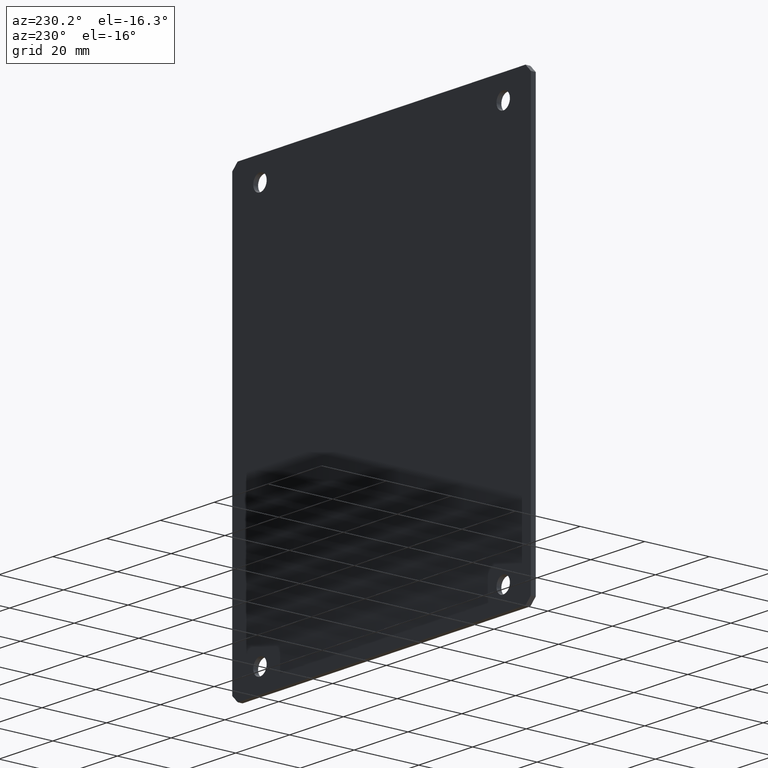
[diagram: clean part render]
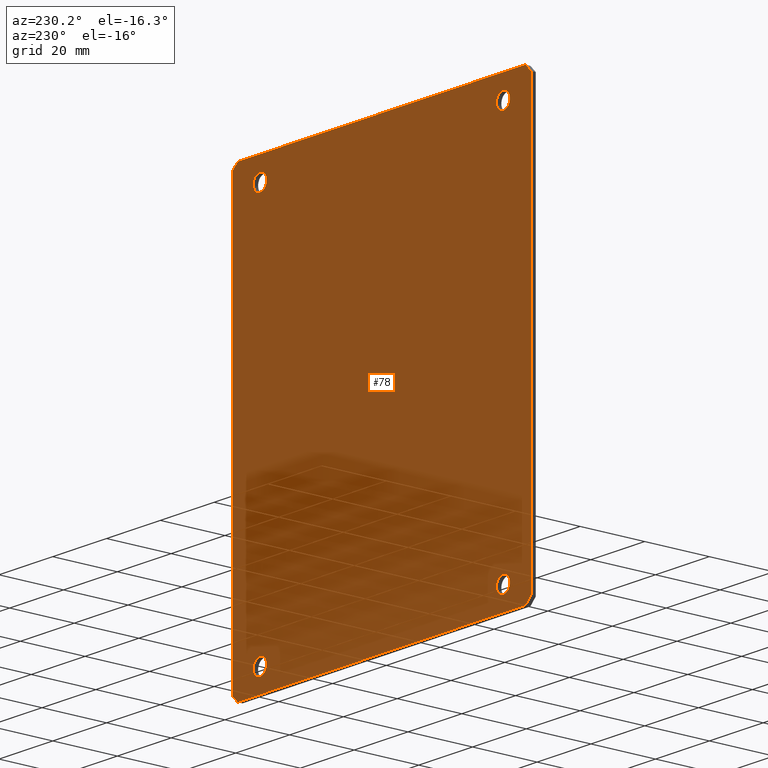
[diagram: same view with one face highlighted and labeled with its STEP entity id]
A machine part, auxiliary view. The second image highlights one B-rep face of the part: STEP entity #78.
In plain terms, the highlighted planar face has unit normal (0, -1, 0).
Its self-contained STEP definition (entity closure, byte-faithful):
#26 = EDGE_CURVE ( 'NONE', #27, #28, #359, .T. ) ;
#27 = VERTEX_POINT ( 'NONE', #360 ) ;
#28 = VERTEX_POINT ( 'NONE', #266 ) ;
#78 = ADVANCED_FACE ( 'NONE', ( #408, #383, #396, #410, #385 ), #401, .F. ) ;
#82 = ORIENTED_EDGE ( 'NONE', *, *, #126, .F. ) ;
#83 = EDGE_LOOP ( 'NONE', ( #127, #122, #87, #90, #161, #102, #105, #108 ) ) ;
#86 = VERTEX_POINT ( 'NONE', #380 ) ;
#87 = ORIENTED_EDGE ( 'NONE', *, *, #88, .T. ) ;
#88 = EDGE_CURVE ( 'NONE', #86, #89, #379, .T. ) ;
#89 = VERTEX_POINT ( 'NONE', #375 ) ;
#90 = ORIENTED_EDGE ( 'NONE', *, *, #91, .T. ) ;
#91 = EDGE_CURVE ( 'NONE', #89, #160, #395, .T. ) ;
#94 = EDGE_CURVE ( 'NONE', #28, #27, #429, .T. ) ;
#95 = ORIENTED_EDGE ( 'NONE', *, *, #156, .F. ) ;
#96 = ORIENTED_EDGE ( 'NONE', *, *, #97, .F. ) ;
#97 = EDGE_CURVE ( 'NONE', #158, #157, #424, .T. ) ;
#100 = EDGE_CURVE ( 'NONE', #160, #101, #630, .T. ) ;
#101 = VERTEX_POINT ( 'NONE', #626 ) ;
#102 = ORIENTED_EDGE ( 'NONE', *, *, #103, .T. ) ;
#103 = EDGE_CURVE ( 'NONE', #101, #104, #625, .T. ) ;
#104 = VERTEX_POINT ( 'NONE', #621 ) ;
#105 = ORIENTED_EDGE ( 'NONE', *, *, #106, .T. ) ;
#106 = EDGE_CURVE ( 'NONE', #104, #107, #620, .T. ) ;
#107 = VERTEX_POINT ( 'NONE', #616 ) ;
#108 = ORIENTED_EDGE ( 'NONE', *, *, #109, .T. ) ;
#109 = EDGE_CURVE ( 'NONE', #107, #120, #615, .T. ) ;
#110 = EDGE_LOOP ( 'NONE', ( #111, #112 ) ) ;
#111 = ORIENTED_EDGE ( 'NONE', *, *, #26, .F. ) ;
#112 = ORIENTED_EDGE ( 'NONE', *, *, #94, .F. ) ;
#113 = EDGE_LOOP ( 'NONE', ( #95, #96 ) ) ;
#117 = EDGE_LOOP ( 'NONE', ( #118, #82 ) ) ;
#118 = ORIENTED_EDGE ( 'NONE', *, *, #129, .F. ) ;
#120 = VERTEX_POINT ( 'NONE', #601 ) ;
#121 = VERTEX_POINT ( 'NONE', #600 ) ;
#122 = ORIENTED_EDGE ( 'NONE', *, *, #123, .T. ) ;
#123 = EDGE_CURVE ( 'NONE', #121, #86, #568, .T. ) ;
#124 = ORIENTED_EDGE ( 'NONE', *, *, #125, .F. ) ;
#125 = EDGE_CURVE ( 'NONE', #145, #144, #564, .T. ) ;
#126 = EDGE_CURVE ( 'NONE', #137, #136, #559, .T. ) ;
#127 = ORIENTED_EDGE ( 'NONE', *, *, #128, .T. ) ;
#128 = EDGE_CURVE ( 'NONE', #120, #121, #554, .T. ) ;
#129 = EDGE_CURVE ( 'NONE', #136, #137, #550, .T. ) ;
#133 = EDGE_LOOP ( 'NONE', ( #134, #124 ) ) ;
#134 = ORIENTED_EDGE ( 'NONE', *, *, #143, .F. ) ;
#136 = VERTEX_POINT ( 'NONE', #541 ) ;
#137 = VERTEX_POINT ( 'NONE', #540 ) ;
#143 = EDGE_CURVE ( 'NONE', #144, #145, #597, .T. ) ;
#144 = VERTEX_POINT ( 'NONE', #592 ) ;
#145 = VERTEX_POINT ( 'NONE', #591 ) ;
#156 = EDGE_CURVE ( 'NONE', #157, #158, #569, .T. ) ;
#157 = VERTEX_POINT ( 'NONE', #439 ) ;
#158 = VERTEX_POINT ( 'NONE', #438 ) ;
#160 = VERTEX_POINT ( 'NONE', #437 ) ;
#161 = ORIENTED_EDGE ( 'NONE', *, *, #100, .T. ) ;
#266 = CARTESIAN_POINT ( 'NONE',  ( 45.20000000000000300, 1.500000000000000000, -57.49999999999998600 ) ) ;
#355 = DIRECTION ( 'NONE',  ( 0.0000000000000000000, 0.0000000000000000000, -1.000000000000000000 ) ) ;
#356 = DIRECTION ( 'NONE',  ( -0.0000000000000000000, 1.000000000000000000, -0.0000000000000000000 ) ) ;
#357 = CARTESIAN_POINT ( 'NONE',  ( 45.20000000000000300, 1.500000000000000000, -59.99999999999999300 ) ) ;
#358 = AXIS2_PLACEMENT_3D ( 'NONE', #357, #356, #355 ) ;
#359 = CIRCLE ( 'NONE', #358, 2.500000000000002200 ) ;
#360 = CARTESIAN_POINT ( 'NONE',  ( 45.20000000000000300, 1.500000000000000000, -62.49999999999999300 ) ) ;
#375 = CARTESIAN_POINT ( 'NONE',  ( -53.49999999999999300, 1.500000000000000000, 67.00000000000000000 ) ) ;
#376 = DIRECTION ( 'NONE',  ( 0.7071067811865474600, 0.0000000000000000000, 0.7071067811865474600 ) ) ;
#377 = VECTOR ( 'NONE', #376, 1000.000000000000100 ) ;
#378 = CARTESIAN_POINT ( 'NONE',  ( -55.49999999999999300, 1.500000000000000000, 65.00000000000000000 ) ) ;
#379 = LINE ( 'NONE', #378, #377 ) ;
#380 = CARTESIAN_POINT ( 'NONE',  ( -55.49999999999999300, 1.500000000000000000, 65.00000000000000000 ) ) ;
#381 = CARTESIAN_POINT ( 'NONE',  ( -120.5000000000000000, 1.500000000000000000, 0.0000000000000000000 ) ) ;
#383 = FACE_BOUND ( 'NONE', #117, .T. ) ;
#384 = AXIS2_PLACEMENT_3D ( 'NONE', #381, #409, #386 ) ;
#385 = FACE_BOUND ( 'NONE', #113, .T. ) ;
#386 = DIRECTION ( 'NONE',  ( 0.0000000000000000000, -0.0000000000000000000, -1.000000000000000000 ) ) ;
#392 = DIRECTION ( 'NONE',  ( 1.000000000000000000, -0.0000000000000000000, -0.0000000000000000000 ) ) ;
#393 = VECTOR ( 'NONE', #392, 1000.000000000000000 ) ;
#394 = CARTESIAN_POINT ( 'NONE',  ( 53.49999999999999300, 1.500000000000000000, 67.00000000000000000 ) ) ;
#395 = LINE ( 'NONE', #394, #393 ) ;
#396 = FACE_OUTER_BOUND ( 'NONE', #83, .T. ) ;
#401 = PLANE ( 'NONE',  #384 ) ;
#408 = FACE_BOUND ( 'NONE', #133, .T. ) ;
#409 = DIRECTION ( 'NONE',  ( 0.0000000000000000000, -1.000000000000000000, 0.0000000000000000000 ) ) ;
#410 = FACE_BOUND ( 'NONE', #110, .T. ) ;
#421 = DIRECTION ( 'NONE',  ( 0.0000000000000000000, 0.0000000000000000000, -1.000000000000000000 ) ) ;
#422 = DIRECTION ( 'NONE',  ( -0.0000000000000000000, 1.000000000000000000, -0.0000000000000000000 ) ) ;
#423 = AXIS2_PLACEMENT_3D ( 'NONE', #430, #422, #421 ) ;
#424 = CIRCLE ( 'NONE', #423, 2.500000000000002200 ) ;
#425 = DIRECTION ( 'NONE',  ( 0.0000000000000000000, 0.0000000000000000000, -1.000000000000000000 ) ) ;
#426 = DIRECTION ( 'NONE',  ( -0.0000000000000000000, 1.000000000000000000, -0.0000000000000000000 ) ) ;
#427 = CARTESIAN_POINT ( 'NONE',  ( 45.20000000000000300, 1.500000000000000000, -59.99999999999999300 ) ) ;
#428 = AXIS2_PLACEMENT_3D ( 'NONE', #427, #426, #425 ) ;
#429 = CIRCLE ( 'NONE', #428, 2.500000000000002200 ) ;
#430 = CARTESIAN_POINT ( 'NONE',  ( -45.20000000000000300, 1.500000000000000000, 60.00000000000000700 ) ) ;
#437 = CARTESIAN_POINT ( 'NONE',  ( 53.49999999999999300, 1.500000000000000000, 67.00000000000000000 ) ) ;
#438 = CARTESIAN_POINT ( 'NONE',  ( -45.20000000000000300, 1.500000000000000000, 62.50000000000001400 ) ) ;
#439 = CARTESIAN_POINT ( 'NONE',  ( -45.20000000000000300, 1.500000000000000000, 57.50000000000000000 ) ) ;
#440 = DIRECTION ( 'NONE',  ( 0.0000000000000000000, 0.0000000000000000000, -1.000000000000000000 ) ) ;
#441 = DIRECTION ( 'NONE',  ( -0.0000000000000000000, 1.000000000000000000, -0.0000000000000000000 ) ) ;
#442 = CARTESIAN_POINT ( 'NONE',  ( -45.20000000000000300, 1.500000000000000000, 60.00000000000000700 ) ) ;
#443 = AXIS2_PLACEMENT_3D ( 'NONE', #442, #441, #440 ) ;
#540 = CARTESIAN_POINT ( 'NONE',  ( -45.20000000000000300, 1.500000000000000000, -57.49999999999998600 ) ) ;
#541 = CARTESIAN_POINT ( 'NONE',  ( -45.20000000000000300, 1.500000000000000000, -62.49999999999999300 ) ) ;
#546 = DIRECTION ( 'NONE',  ( 0.0000000000000000000, 0.0000000000000000000, 1.000000000000000000 ) ) ;
#547 = DIRECTION ( 'NONE',  ( 0.0000000000000000000, 1.000000000000000000, 0.0000000000000000000 ) ) ;
#548 = CARTESIAN_POINT ( 'NONE',  ( -45.20000000000000300, 1.500000000000000000, -59.99999999999999300 ) ) ;
#549 = AXIS2_PLACEMENT_3D ( 'NONE', #548, #547, #546 ) ;
#550 = CIRCLE ( 'NONE', #549, 2.500000000000002200 ) ;
#551 = DIRECTION ( 'NONE',  ( -0.7071067811865474600, -0.0000000000000000000, 0.7071067811865474600 ) ) ;
#552 = VECTOR ( 'NONE', #551, 1000.000000000000100 ) ;
#553 = CARTESIAN_POINT ( 'NONE',  ( -55.49999999999999300, 1.500000000000000000, -65.00000000000000000 ) ) ;
#554 = LINE ( 'NONE', #553, #552 ) ;
#555 = DIRECTION ( 'NONE',  ( 0.0000000000000000000, 0.0000000000000000000, 1.000000000000000000 ) ) ;
#556 = DIRECTION ( 'NONE',  ( 0.0000000000000000000, 1.000000000000000000, 0.0000000000000000000 ) ) ;
#557 = CARTESIAN_POINT ( 'NONE',  ( -45.20000000000000300, 1.500000000000000000, -59.99999999999999300 ) ) ;
#558 = AXIS2_PLACEMENT_3D ( 'NONE', #557, #556, #555 ) ;
#559 = CIRCLE ( 'NONE', #558, 2.500000000000002200 ) ;
#560 = DIRECTION ( 'NONE',  ( 0.0000000000000000000, 0.0000000000000000000, 1.000000000000000000 ) ) ;
#561 = DIRECTION ( 'NONE',  ( 0.0000000000000000000, 1.000000000000000000, 0.0000000000000000000 ) ) ;
#562 = CARTESIAN_POINT ( 'NONE',  ( 45.20000000000000300, 1.500000000000000000, 60.00000000000000700 ) ) ;
#563 = AXIS2_PLACEMENT_3D ( 'NONE', #562, #561, #560 ) ;
#564 = CIRCLE ( 'NONE', #563, 2.500000000000009300 ) ;
#565 = DIRECTION ( 'NONE',  ( -0.0000000000000000000, -0.0000000000000000000, 1.000000000000000000 ) ) ;
#566 = VECTOR ( 'NONE', #565, 1000.000000000000000 ) ;
#567 = CARTESIAN_POINT ( 'NONE',  ( -55.49999999999999300, 1.500000000000000000, 65.00000000000000000 ) ) ;
#568 = LINE ( 'NONE', #567, #566 ) ;
#569 = CIRCLE ( 'NONE', #443, 2.500000000000002200 ) ;
#591 = CARTESIAN_POINT ( 'NONE',  ( 45.20000000000000300, 1.500000000000000000, 62.50000000000001400 ) ) ;
#592 = CARTESIAN_POINT ( 'NONE',  ( 45.20000000000000300, 1.500000000000000000, 57.50000000000000000 ) ) ;
#593 = DIRECTION ( 'NONE',  ( 0.0000000000000000000, 0.0000000000000000000, 1.000000000000000000 ) ) ;
#594 = DIRECTION ( 'NONE',  ( 0.0000000000000000000, 1.000000000000000000, 0.0000000000000000000 ) ) ;
#595 = CARTESIAN_POINT ( 'NONE',  ( 45.20000000000000300, 1.500000000000000000, 60.00000000000000700 ) ) ;
#596 = AXIS2_PLACEMENT_3D ( 'NONE', #595, #594, #593 ) ;
#597 = CIRCLE ( 'NONE', #596, 2.500000000000009300 ) ;
#600 = CARTESIAN_POINT ( 'NONE',  ( -55.49999999999999300, 1.500000000000000000, -65.00000000000000000 ) ) ;
#601 = CARTESIAN_POINT ( 'NONE',  ( -53.49999999999999300, 1.500000000000000000, -67.00000000000000000 ) ) ;
#612 = DIRECTION ( 'NONE',  ( -1.000000000000000000, 0.0000000000000000000, 0.0000000000000000000 ) ) ;
#613 = VECTOR ( 'NONE', #612, 1000.000000000000000 ) ;
#614 = CARTESIAN_POINT ( 'NONE',  ( 53.49999999999999300, 1.500000000000000000, -67.00000000000000000 ) ) ;
#615 = LINE ( 'NONE', #614, #613 ) ;
#616 = CARTESIAN_POINT ( 'NONE',  ( 53.49999999999999300, 1.500000000000000000, -67.00000000000000000 ) ) ;
#617 = DIRECTION ( 'NONE',  ( -0.7071067811865500200, 0.0000000000000000000, -0.7071067811865451300 ) ) ;
#618 = VECTOR ( 'NONE', #617, 1000.000000000000100 ) ;
#619 = CARTESIAN_POINT ( 'NONE',  ( 55.49999999999999300, 1.500000000000000000, -65.00000000000001400 ) ) ;
#620 = LINE ( 'NONE', #619, #618 ) ;
#621 = CARTESIAN_POINT ( 'NONE',  ( 55.49999999999999300, 1.500000000000000000, -65.00000000000001400 ) ) ;
#622 = DIRECTION ( 'NONE',  ( 0.0000000000000000000, 0.0000000000000000000, -1.000000000000000000 ) ) ;
#623 = VECTOR ( 'NONE', #622, 1000.000000000000000 ) ;
#624 = CARTESIAN_POINT ( 'NONE',  ( 55.49999999999999300, 1.500000000000000000, 65.00000000000001400 ) ) ;
#625 = LINE ( 'NONE', #624, #623 ) ;
#626 = CARTESIAN_POINT ( 'NONE',  ( 55.49999999999999300, 1.500000000000000000, 65.00000000000001400 ) ) ;
#627 = DIRECTION ( 'NONE',  ( 0.7071067811865500200, -0.0000000000000000000, -0.7071067811865451300 ) ) ;
#628 = VECTOR ( 'NONE', #627, 1000.000000000000100 ) ;
#629 = CARTESIAN_POINT ( 'NONE',  ( 55.49999999999999300, 1.500000000000000000, 65.00000000000001400 ) ) ;
#630 = LINE ( 'NONE', #629, #628 ) ;